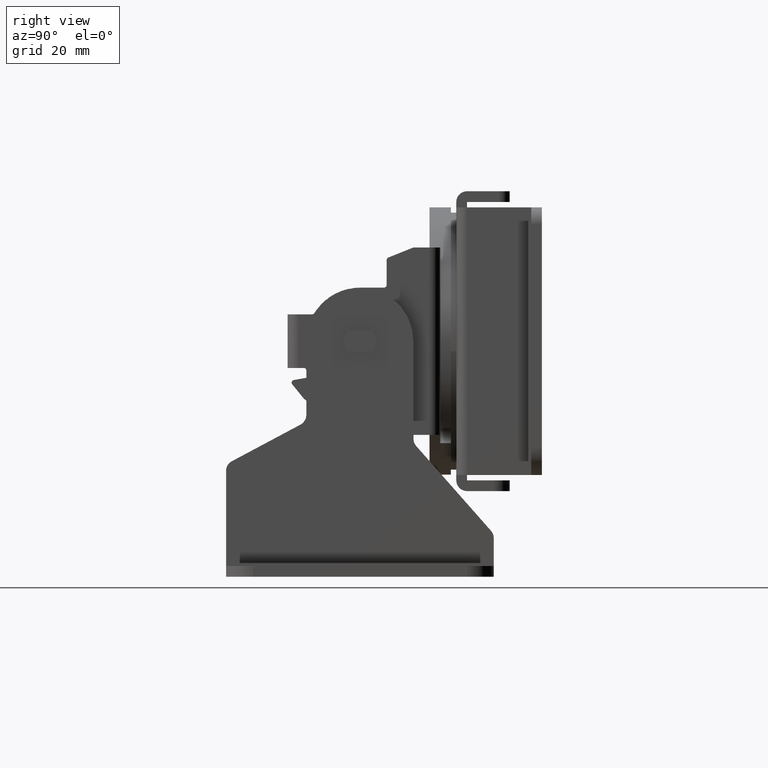
[diagram: clean part render]
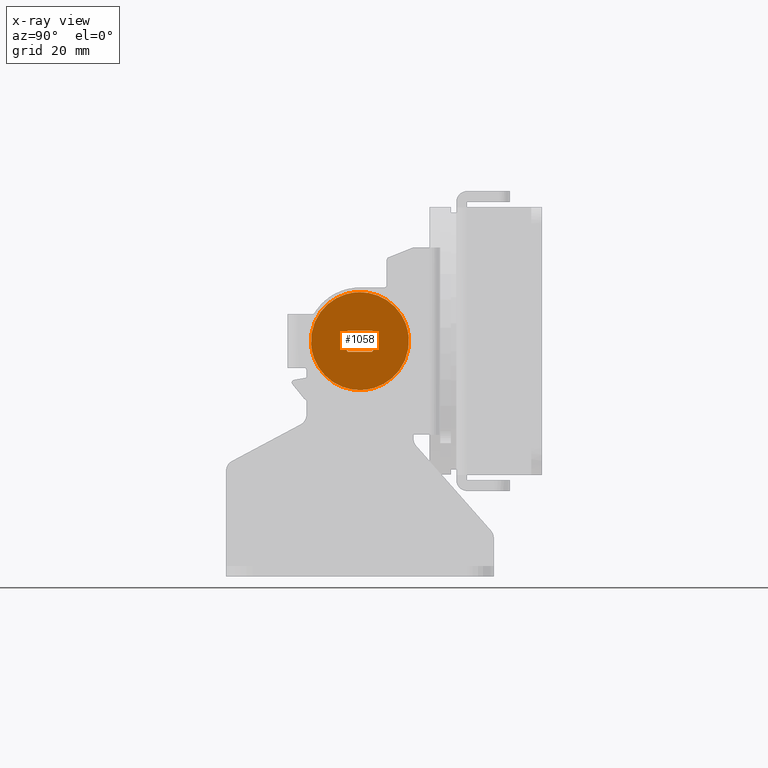
[diagram: x-ray — body ghosted, one internal face saturated and labeled with its STEP entity id]
A machine part, right view, then the same camera in x-ray: the body is ghosted and one INTERNAL B-rep face — a face not visible from any outside direction — is saturated and labeled: STEP entity #1058.
In plain terms, the highlighted face is a freeform B-spline surface patch.
Its self-contained STEP definition (entity closure, byte-faithful):
#714=CARTESIAN_POINT('',(-21.0,-43.121793603649337,-0.717900726020761));
#715=VERTEX_POINT('',#714);
#721=CARTESIAN_POINT('',(-21.0,-34.0,-9.149999999999313));
#722=VERTEX_POINT('',#721);
#723=CARTESIAN_POINT('',(-21.0,-34.0,-9.149999999999313));
#724=CARTESIAN_POINT('',(-21.000000000000004,-42.458172998464875,-9.149999999999315));
#725=CARTESIAN_POINT('',(-21.0,-43.121793603649337,-0.717900726020761));
#733=(BOUNDED_CURVE()B_SPLINE_CURVE(2,(#723,#724,#725),.UNSPECIFIED.,.F.,.U.)B_SPLINE_CURVE_WITH_KNOTS((3,3),(0.0,0.236331300628570),.UNSPECIFIED.)CURVE()GEOMETRIC_REPRESENTATION_ITEM()RATIONAL_B_SPLINE_CURVE((1.0,0.723120658610114,0.969723356163057))REPRESENTATION_ITEM(''));
#734=EDGE_CURVE('',#722,#715,#733,.T.);
#736=CARTESIAN_POINT('',(-21.0,-24.878206396350670,0.717900726022133));
#737=VERTEX_POINT('',#736);
#738=CARTESIAN_POINT('',(-21.000000000000004,-24.878206396350667,0.717900726022133));
#739=CARTESIAN_POINT('',(-21.0,-24.850000000000009,0.359504479233044));
#740=CARTESIAN_POINT('',(-21.0,-24.850000000000009,6.863040E-013));
#741=CARTESIAN_POINT('',(-21.000000000000004,-24.850000000000001,-9.149999999999313));
#742=CARTESIAN_POINT('',(-21.0,-34.0,-9.149999999999313));
#750=(BOUNDED_CURVE()B_SPLINE_CURVE(2,(#738,#739,#740,#741,#742),.UNSPECIFIED.,.F.,.U.)B_SPLINE_CURVE_WITH_KNOTS((3,2,3),(0.736331300628570,0.750000000000000,1.0),.UNSPECIFIED.)CURVE()GEOMETRIC_REPRESENTATION_ITEM()RATIONAL_B_SPLINE_CURVE((0.969723356163057,0.983986122576434,1.0,0.707106781186548,1.0))REPRESENTATION_ITEM(''));
#751=EDGE_CURVE('',#737,#722,#750,.T.);
#827=CARTESIAN_POINT('',(-21.0,-34.0,9.150000000000688));
#828=VERTEX_POINT('',#827);
#829=CARTESIAN_POINT('',(-21.0,-34.0,9.150000000000688));
#830=CARTESIAN_POINT('',(-20.999999999999996,-25.541827001535161,9.150000000000688));
#831=CARTESIAN_POINT('',(-21.000000000000004,-24.878206396350670,0.717900726022133));
#839=(BOUNDED_CURVE()B_SPLINE_CURVE(2,(#829,#830,#831),.UNSPECIFIED.,.F.,.U.)B_SPLINE_CURVE_WITH_KNOTS((3,3),(0.500000000000000,0.736331300628569),.UNSPECIFIED.)CURVE()GEOMETRIC_REPRESENTATION_ITEM()RATIONAL_B_SPLINE_CURVE((1.0,0.723120658610114,0.969723356163056))REPRESENTATION_ITEM(''));
#840=EDGE_CURVE('',#828,#737,#839,.T.);
#842=CARTESIAN_POINT('',(-21.0,-43.121793603649344,-0.717900726020761));
#843=CARTESIAN_POINT('',(-21.000000000000004,-43.150000000000006,-0.359504479231673));
#844=CARTESIAN_POINT('',(-21.0,-43.149999999999999,6.863040E-013));
#845=CARTESIAN_POINT('',(-21.000000000000004,-43.150000000000006,9.150000000000688));
#846=CARTESIAN_POINT('',(-21.0,-34.0,9.150000000000688));
#854=(BOUNDED_CURVE()B_SPLINE_CURVE(2,(#842,#843,#844,#845,#846),.UNSPECIFIED.,.F.,.U.)B_SPLINE_CURVE_WITH_KNOTS((3,2,3),(0.236331300628570,0.250000000000000,0.500000000000000),.UNSPECIFIED.)CURVE()GEOMETRIC_REPRESENTATION_ITEM()RATIONAL_B_SPLINE_CURVE((0.969723356163057,0.983986122576434,1.0,0.707106781186548,1.0))REPRESENTATION_ITEM(''));
#855=EDGE_CURVE('',#715,#828,#854,.T.);
#866=CARTESIAN_POINT('',(-21.0,-36.269498843357248,2.000000000000625));
#867=VERTEX_POINT('',#866);
#868=CARTESIAN_POINT('',(-21.0,-31.730501156642600,2.000000000000625));
#869=VERTEX_POINT('',#868);
#870=CARTESIAN_POINT('',(-21.0,-36.269498843357248,2.000000000000625));
#871=CARTESIAN_POINT('',(-21.0,-31.730501156642600,2.000000000000625));
#872=QUASI_UNIFORM_CURVE('',1,(#870,#871),.UNSPECIFIED.,.F.,.U.);
#873=EDGE_CURVE('',#867,#869,#872,.T.);
#911=CARTESIAN_POINT('',(-21.0,-36.269498843357162,-1.999999999999375));
#912=VERTEX_POINT('',#911);
#913=CARTESIAN_POINT('',(-21.0,-36.269498843357191,-1.999999999999409));
#914=CARTESIAN_POINT('',(-21.000000000000004,-38.032002495521702,5.822206E-013));
#915=CARTESIAN_POINT('',(-21.0,-36.269498843357297,2.000000000000665));
#923=(BOUNDED_CURVE()B_SPLINE_CURVE(2,(#913,#914,#915),.UNSPECIFIED.,.F.,.U.)CURVE()GEOMETRIC_REPRESENTATION_ITEM()QUASI_UNIFORM_CURVE()RATIONAL_B_SPLINE_CURVE((1.0,0.750247551523055,1.0))REPRESENTATION_ITEM(''));
#924=EDGE_CURVE('',#912,#867,#923,.T.);
#955=CARTESIAN_POINT('',(-21.0,-31.730501156642699,-1.999999999999375));
#956=VERTEX_POINT('',#955);
#957=CARTESIAN_POINT('',(-21.0,-31.730501156642699,-1.999999999999375));
#958=CARTESIAN_POINT('',(-21.0,-36.269498843357162,-1.999999999999375));
#959=QUASI_UNIFORM_CURVE('',1,(#957,#958),.UNSPECIFIED.,.F.,.U.);
#960=EDGE_CURVE('',#956,#912,#959,.T.);
#992=CARTESIAN_POINT('',(-21.0,-31.730501156642649,2.000000000000589));
#993=CARTESIAN_POINT('',(-21.0,-29.967997504478426,5.822206E-013));
#994=CARTESIAN_POINT('',(-21.0,-31.730501156642749,-1.999999999999333));
#1002=(BOUNDED_CURVE()B_SPLINE_CURVE(2,(#992,#993,#994),.UNSPECIFIED.,.F.,.U.)CURVE()GEOMETRIC_REPRESENTATION_ITEM()QUASI_UNIFORM_CURVE()RATIONAL_B_SPLINE_CURVE((1.0,0.750247551523077,1.0))REPRESENTATION_ITEM(''));
#1003=EDGE_CURVE('',#869,#956,#1002,.T.);
#1041=CARTESIAN_POINT('',(-21.0,-23.938707668974740,10.064084555576670));
#1042=CARTESIAN_POINT('',(-21.0,-44.061292494640007,10.064084555576670));
#1043=CARTESIAN_POINT('',(-21.0,-23.938707668974740,-10.064084064731050));
#1044=CARTESIAN_POINT('',(-21.0,-44.061292494640007,-10.064084064731050));
#1045=B_SPLINE_SURFACE_WITH_KNOTS('',1,1,((#1041,#1043),(#1042,#1044)),.UNSPECIFIED.,.F.,.F.,.U.,(2,2),(2,2),(0.0,20.122584825665271),(0.0,20.128168620307719),.UNSPECIFIED.);
#1046=ORIENTED_EDGE('',*,*,#734,.T.);
#1047=ORIENTED_EDGE('',*,*,#855,.T.);
#1048=ORIENTED_EDGE('',*,*,#840,.T.);
#1049=ORIENTED_EDGE('',*,*,#751,.T.);
#1050=EDGE_LOOP('',(#1046,#1047,#1048,#1049));
#1051=FACE_OUTER_BOUND('',#1050,.T.);
#1052=ORIENTED_EDGE('',*,*,#1003,.F.);
#1053=ORIENTED_EDGE('',*,*,#873,.F.);
#1054=ORIENTED_EDGE('',*,*,#924,.F.);
#1055=ORIENTED_EDGE('',*,*,#960,.F.);
#1056=EDGE_LOOP('',(#1052,#1053,#1054,#1055));
#1057=FACE_BOUND('',#1056,.T.);
#1058=ADVANCED_FACE('',(#1051,#1057),#1045,.F.);